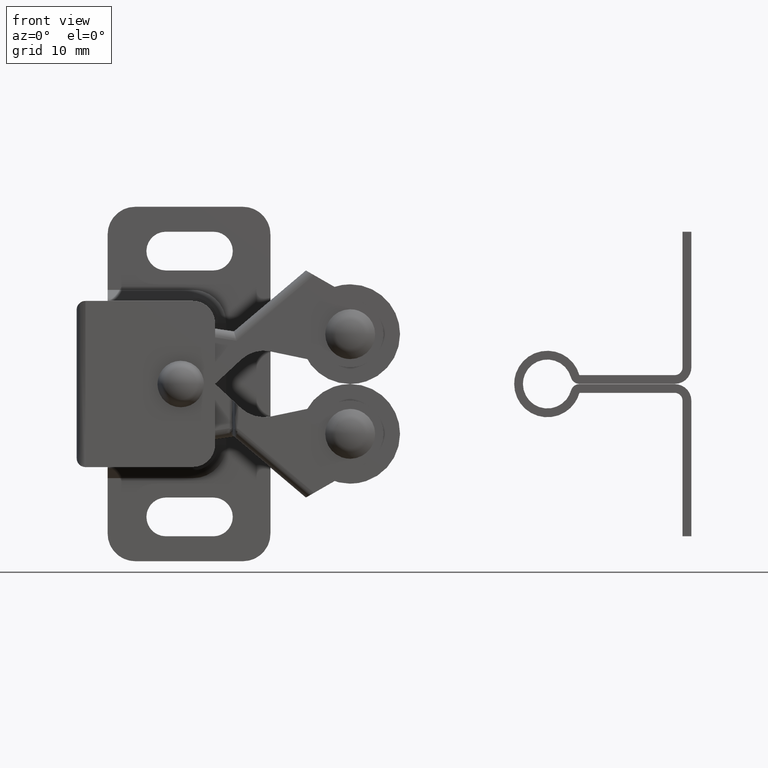
[diagram: clean part render]
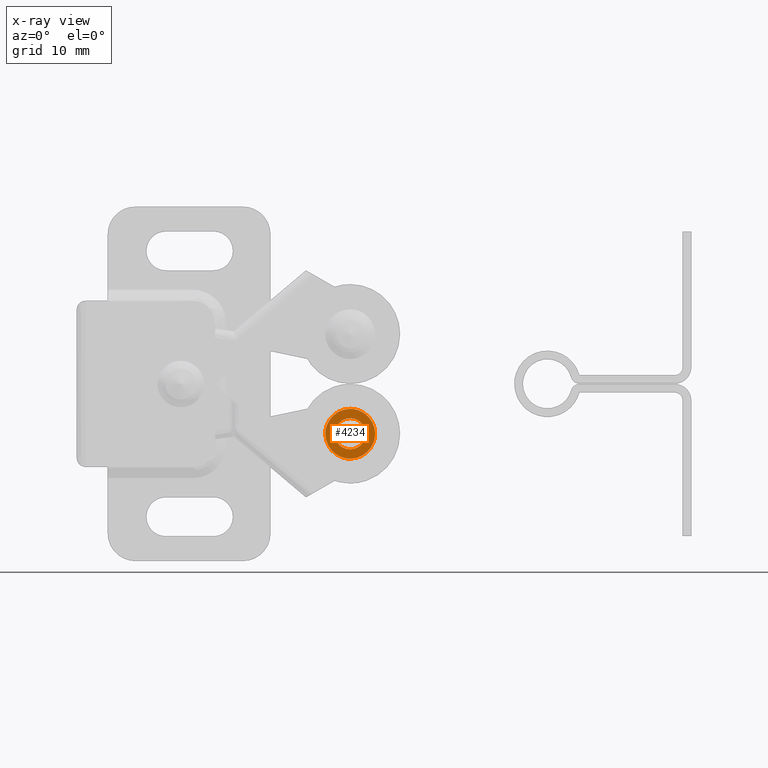
[diagram: x-ray — body ghosted, one internal face saturated and labeled with its STEP entity id]
A machine part, front view, then the same camera in x-ray: the body is ghosted and one INTERNAL B-rep face — a face not visible from any outside direction — is saturated and labeled: STEP entity #4234.
In plain terms, the highlighted face is a freeform B-spline surface patch.
Its self-contained STEP definition (entity closure, byte-faithful):
#4092=CARTESIAN_POINT('',(24.700013000000201,-5.399997000000000,-6.749999999999910));
#4093=VERTEX_POINT('',#4092);
#4094=CARTESIAN_POINT('',(26.950012999999799,-5.399997000000000,-4.499998815156664));
#4095=VERTEX_POINT('',#4094);
#4096=CARTESIAN_POINT('',(24.700013000000201,-5.399997000000000,-6.749999999999910));
#4097=CARTESIAN_POINT('',(24.985357678375870,-5.399997000000005,-6.750256927575808));
#4098=CARTESIAN_POINT('',(25.500621483768079,-5.399996999999998,-6.650637202267545));
#4099=CARTESIAN_POINT('',(26.109855014295778,-5.399997000000001,-6.290443620153937));
#4100=CARTESIAN_POINT('',(26.538267007499140,-5.399997000000002,-5.840420759932599));
#4101=CARTESIAN_POINT('',(26.860762981272210,-5.399996999999999,-5.254580532398133));
#4102=CARTESIAN_POINT('',(26.950254426036832,-5.399996999999998,-4.776147786935279));
#4103=CARTESIAN_POINT('',(26.950012999999799,-5.399997000000000,-4.499998815156664));
#4104=B_SPLINE_CURVE_WITH_KNOTS('',3,(#4096,#4097,#4098,#4099,#4100,#4101,#4102,#4103),.UNSPECIFIED.,.F.,.U.,(4,1,1,1,1,4),(0.000000089532433,0.855967608228503,1.546283358173775,2.098480893212773,2.705960119351722,3.534314579278571),.UNSPECIFIED.);
#4105=EDGE_CURVE('',#4093,#4095,#4104,.T.);
#4107=CARTESIAN_POINT('',(24.700013000000201,-5.399997000000000,-2.250000000000091));
#4108=VERTEX_POINT('',#4107);
#4109=CARTESIAN_POINT('',(26.950012999999799,-5.399997000000000,-4.499998815156664));
#4110=CARTESIAN_POINT('',(26.950096409772112,-5.399997000000005,-4.288298272464016));
#4111=CARTESIAN_POINT('',(26.902884673647861,-5.399996999999988,-3.957013870901125));
#4112=CARTESIAN_POINT('',(26.729549630361308,-5.399997000000009,-3.499379526103389));
#4113=CARTESIAN_POINT('',(26.460516113349819,-5.399997000000036,-3.056410887902075));
#4114=CARTESIAN_POINT('',(26.041937603332929,-5.399996999999984,-2.657980323705669));
#4115=CARTESIAN_POINT('',(25.426970740609281,-5.399997000000040,-2.334089881543824));
#4116=CARTESIAN_POINT('',(24.976162216576299,-5.399996999999984,-2.249780356823177));
#4117=CARTESIAN_POINT('',(24.700013000000201,-5.399997000000000,-2.250000000000091));
#4118=B_SPLINE_CURVE_WITH_KNOTS('',3,(#4109,#4110,#4111,#4112,#4113,#4114,#4115,#4116,#4117),.UNSPECIFIED.,.F.,.U.,(4,1,1,1,1,1,4),(0.000000089943380,0.635069725319875,0.994028799085863,1.463430847763702,2.181330777873011,2.705959096995323,3.534313243675612),.UNSPECIFIED.);
#4119=EDGE_CURVE('',#4095,#4108,#4118,.T.);
#4121=CARTESIAN_POINT('',(22.450013000000599,-5.399997000000000,-4.500001184843318));
#4122=VERTEX_POINT('',#4121);
#4123=CARTESIAN_POINT('',(24.700013000000201,-5.399997000000000,-2.250000000000091));
#4124=CARTESIAN_POINT('',(24.414644606208071,-5.399997000000015,-2.249727911813879));
#4125=CARTESIAN_POINT('',(23.963875440497421,-5.399996999999972,-2.336980322634685));
#4126=CARTESIAN_POINT('',(23.433064378574549,-5.399997000000035,-2.620806010471315));
#4127=CARTESIAN_POINT('',(23.065087360599659,-5.399996999999956,-2.930425343604771));
#4128=CARTESIAN_POINT('',(22.757410534864739,-5.399997000000020,-3.324614611830772));
#4129=CARTESIAN_POINT('',(22.514117088234659,-5.399997000000001,-3.855784967199453));
#4130=CARTESIAN_POINT('',(22.449899220622751,-5.399996999999996,-4.269894204275907));
#4131=CARTESIAN_POINT('',(22.450013000000599,-5.399997000000000,-4.500001184843318));
#4132=B_SPLINE_CURVE_WITH_KNOTS('',3,(#4123,#4124,#4125,#4126,#4127,#4128,#4129,#4130,#4131),.UNSPECIFIED.,.F.,.U.,(4,1,1,1,1,1,4),(0.000000089531402,0.855967608228597,1.352990869851723,1.794741768189243,2.291775408222004,2.844024521348168,3.534314579278563),.UNSPECIFIED.);
#4133=EDGE_CURVE('',#4108,#4122,#4132,.T.);
#4135=CARTESIAN_POINT('',(22.450013000000599,-5.399997000000000,-4.500001184843318));
#4136=CARTESIAN_POINT('',(22.449937751728680,-5.399997000000004,-4.711696814077357));
#4137=CARTESIAN_POINT('',(22.502363754592562,-5.399996999999998,-5.079807910400552));
#4138=CARTESIAN_POINT('',(22.718666502403192,-5.399997000000007,-5.611244089745595));
#4139=CARTESIAN_POINT('',(23.007001434372761,-5.399997000000000,-6.010203619614038));
#4140=CARTESIAN_POINT('',(23.346167694451442,-5.399997000000017,-6.309994704062233));
#4141=CARTESIAN_POINT('',(23.714190943899389,-5.399996999999951,-6.539959298835960));
#4142=CARTESIAN_POINT('',(24.166195310845708,-5.399997000000104,-6.707958131172426));
#4143=CARTESIAN_POINT('',(24.525139995318622,-5.399996999999902,-6.750030587322887));
#4144=CARTESIAN_POINT('',(24.700013000000201,-5.399997000000000,-6.749999999999910));
#4145=B_SPLINE_CURVE_WITH_KNOTS('',3,(#4135,#4136,#4137,#4138,#4139,#4140,#4141,#4142,#4143,#4144),.UNSPECIFIED.,.F.,.U.,(4,1,1,1,1,1,1,4),(0.000000089938506,0.635069725316447,1.104475684943289,1.711943156404716,2.098480099487420,2.457446495816859,3.009695400493355,3.534313243675635),.UNSPECIFIED.);
#4146=EDGE_CURVE('',#4122,#4093,#4145,.T.);
#4151=CARTESIAN_POINT('',(22.225238008722510,-5.399997000000000,-6.974774991278029));
#4152=CARTESIAN_POINT('',(22.225238008722510,-5.399997000000000,-2.025224888022567));
#4153=CARTESIAN_POINT('',(27.174788111977300,-5.399997000000000,-6.974774991278029));
#4154=CARTESIAN_POINT('',(27.174788111977300,-5.399997000000000,-2.025224888022567));
#4155=B_SPLINE_SURFACE_WITH_KNOTS('',1,1,((#4151,#4153),(#4152,#4154)),.UNSPECIFIED.,.F.,.F.,.U.,(2,2),(2,2),(0.0,4.949550103255461),(0.0,4.949550103254786),.UNSPECIFIED.);
#4156=ORIENTED_EDGE('',*,*,#4146,.F.);
#4157=ORIENTED_EDGE('',*,*,#4133,.F.);
#4158=ORIENTED_EDGE('',*,*,#4119,.F.);
#4159=ORIENTED_EDGE('',*,*,#4105,.F.);
#4160=EDGE_LOOP('',(#4156,#4157,#4158,#4159));
#4161=FACE_OUTER_BOUND('',#4160,.T.);
#4162=CARTESIAN_POINT('',(26.100005999999311,-5.399997000000000,-4.499998504273574));
#4163=VERTEX_POINT('',#4162);
#4164=CARTESIAN_POINT('',(24.700013000000201,-5.399997000000000,-3.100007000000090));
#4165=VERTEX_POINT('',#4164);
#4166=CARTESIAN_POINT('',(26.100005999999311,-5.399997000000000,-4.499998504273574));
#4167=CARTESIAN_POINT('',(26.100133277117020,-5.399997000000002,-4.339626702433239));
#4168=CARTESIAN_POINT('',(26.060195779024721,-5.399997000000001,-4.110638614887571));
#4169=CARTESIAN_POINT('',(25.925205952727360,-5.399997000000002,-3.806147695383079));
#4170=CARTESIAN_POINT('',(25.749218016288829,-5.399996999999993,-3.549558029457027));
#4171=CARTESIAN_POINT('',(25.494986977614811,-5.399997000000017,-3.330242241483721));
#4172=CARTESIAN_POINT('',(25.135143728196351,-5.399996999999968,-3.149165638657111));
#4173=CARTESIAN_POINT('',(24.871849965806408,-5.399997000000019,-3.099838174050126));
#4174=CARTESIAN_POINT('',(24.700013000000201,-5.399997000000000,-3.100007000000090));
#4175=B_SPLINE_CURVE_WITH_KNOTS('',3,(#4166,#4167,#4168,#4169,#4170,#4171,#4172,#4173,#4174),.UNSPECIFIED.,.F.,.U.,(4,1,1,1,1,1,4),(0.000000098858990,0.481063383844013,0.687244512704375,0.996514583459657,1.408823759941591,1.683732449718405,2.199158203185645),.UNSPECIFIED.);
#4176=EDGE_CURVE('',#4163,#4165,#4175,.T.);
#4177=ORIENTED_EDGE('',*,*,#4176,.T.);
#4178=CARTESIAN_POINT('',(23.736321662723981,-5.399996999997917,-3.484481235555421));
#4179=VERTEX_POINT('',#4178);
#4180=CARTESIAN_POINT('',(24.700013000000201,-5.399997000000000,-3.100007000000090));
#4181=CARTESIAN_POINT('',(24.578218089368800,-5.399996999999740,-3.099968611150521));
#4182=CARTESIAN_POINT('',(24.367877770476980,-5.399996999999281,-3.127642878387118));
#4183=CARTESIAN_POINT('',(24.034264682848839,-5.399996999998558,-3.251625309208589));
#4184=CARTESIAN_POINT('',(23.840691431443549,-5.399996999998145,-3.385347372317107));
#4185=CARTESIAN_POINT('',(23.736321662723981,-5.399996999997917,-3.484481235555421));
#4186=B_SPLINE_CURVE_WITH_KNOTS('',3,(#4180,#4181,#4182,#4183,#4184,#4185),.UNSPECIFIED.,.F.,.U.,(4,1,1,4),(0.000000029569571,0.365381708186798,0.631103039505197,1.062924991631331),.UNSPECIFIED.);
#4187=EDGE_CURVE('',#4165,#4179,#4186,.T.);
#4188=ORIENTED_EDGE('',*,*,#4187,.T.);
#4189=CARTESIAN_POINT('',(23.300020000001091,-5.399997000000000,-4.500001495726431));
#4190=VERTEX_POINT('',#4189);
#4191=CARTESIAN_POINT('',(23.736321662723981,-5.399996999997917,-3.484481235555421));
#4192=CARTESIAN_POINT('',(23.590130452095011,-5.399996999998206,-3.622795941459950));
#4193=CARTESIAN_POINT('',(23.373096796612192,-5.399996999998848,-3.943864187634341));
#4194=CARTESIAN_POINT('',(23.299846241749670,-5.399996999999641,-4.322441230049760));
#4195=CARTESIAN_POINT('',(23.300020000001091,-5.399997000000000,-4.500001495726431));
#4196=B_SPLINE_CURVE_WITH_KNOTS('',3,(#4191,#4192,#4193,#4194,#4195),.UNSPECIFIED.,.F.,.U.,(4,1,4),(0.000000028806125,0.603619372777181,1.136235440469749),.UNSPECIFIED.);
#4197=EDGE_CURVE('',#4179,#4190,#4196,.T.);
#4198=ORIENTED_EDGE('',*,*,#4197,.T.);
#4199=CARTESIAN_POINT('',(24.700013000000201,-5.399997000000000,-5.899992999999911));
#4200=VERTEX_POINT('',#4199);
#4201=CARTESIAN_POINT('',(23.300020000001091,-5.399997000000000,-4.500001495726431));
#4202=CARTESIAN_POINT('',(23.299986209453820,-5.399997000000006,-4.625995709010700));
#4203=CARTESIAN_POINT('',(23.337340961262271,-5.399996999999994,-4.900864079071304));
#4204=CARTESIAN_POINT('',(23.516001829874110,-5.399997000000011,-5.291138189941234));
#4205=CARTESIAN_POINT('',(23.784486438958609,-5.399996999999988,-5.580038632032947));
#4206=CARTESIAN_POINT('',(24.085947228048479,-5.399997000000002,-5.770895747151678));
#4207=CARTESIAN_POINT('',(24.379314960140380,-5.399997000000016,-5.875866083517726));
#4208=CARTESIAN_POINT('',(24.596933739267890,-5.399996999999975,-5.900008393526117));
#4209=CARTESIAN_POINT('',(24.700013000000201,-5.399997000000000,-5.899992999999911));
#4210=B_SPLINE_CURVE_WITH_KNOTS('',3,(#4201,#4202,#4203,#4204,#4205,#4206,#4207,#4208,#4209),.UNSPECIFIED.,.F.,.U.,(4,1,1,1,1,1,4),(0.000000098858873,0.377980631933392,0.824686580190563,1.271372356692377,1.546283069507318,1.889913634400475,2.199158203185641),.UNSPECIFIED.);
#4211=EDGE_CURVE('',#4190,#4200,#4210,.T.);
#4212=ORIENTED_EDGE('',*,*,#4211,.T.);
#4213=CARTESIAN_POINT('',(25.663704337276421,-5.399996999997919,-5.515518764444581));
#4214=VERTEX_POINT('',#4213);
#4215=CARTESIAN_POINT('',(24.700013000000201,-5.399997000000000,-5.899992999999911));
#4216=CARTESIAN_POINT('',(24.888265752565211,-5.399996999999591,-5.900216913786763));
#4217=CARTESIAN_POINT('',(25.242369263156899,-5.399996999998821,-5.827372987443754));
#4218=CARTESIAN_POINT('',(25.543303660395811,-5.399996999998190,-5.629938028603128));
#4219=CARTESIAN_POINT('',(25.663704337276421,-5.399996999997919,-5.515518764444581));
#4220=B_SPLINE_CURVE_WITH_KNOTS('',3,(#4215,#4216,#4217,#4218,#4219),.UNSPECIFIED.,.F.,.U.,(4,1,4),(0.000000029569305,0.564671247904688,1.062924991631331),.UNSPECIFIED.);
#4221=EDGE_CURVE('',#4200,#4214,#4220,.T.);
#4222=ORIENTED_EDGE('',*,*,#4221,.T.);
#4223=CARTESIAN_POINT('',(25.663704337276421,-5.399996999997919,-5.515518764444581));
#4224=CARTESIAN_POINT('',(25.740982214672218,-5.399996999998066,-5.442208290733469));
#4225=CARTESIAN_POINT('',(25.886339185698951,-5.399996999998430,-5.268709233903559));
#4226=CARTESIAN_POINT('',(26.054685543649210,-5.399996999999118,-4.926037743076168));
#4227=CARTESIAN_POINT('',(26.100083287433211,-5.399996999999691,-4.653868542774023));
#4228=CARTESIAN_POINT('',(26.100005999999311,-5.399997000000000,-4.499998504273574));
#4229=B_SPLINE_CURVE_WITH_KNOTS('',3,(#4223,#4224,#4225,#4226,#4227,#4228),.UNSPECIFIED.,.F.,.U.,(4,1,1,4),(0.000000028805396,0.319566846080017,0.674630950957279,1.136235440469755),.UNSPECIFIED.);
#4230=EDGE_CURVE('',#4214,#4163,#4229,.T.);
#4231=ORIENTED_EDGE('',*,*,#4230,.T.);
#4232=EDGE_LOOP('',(#4177,#4188,#4198,#4212,#4222,#4231));
#4233=FACE_BOUND('',#4232,.T.);
#4234=ADVANCED_FACE('',(#4161,#4233),#4155,.T.);